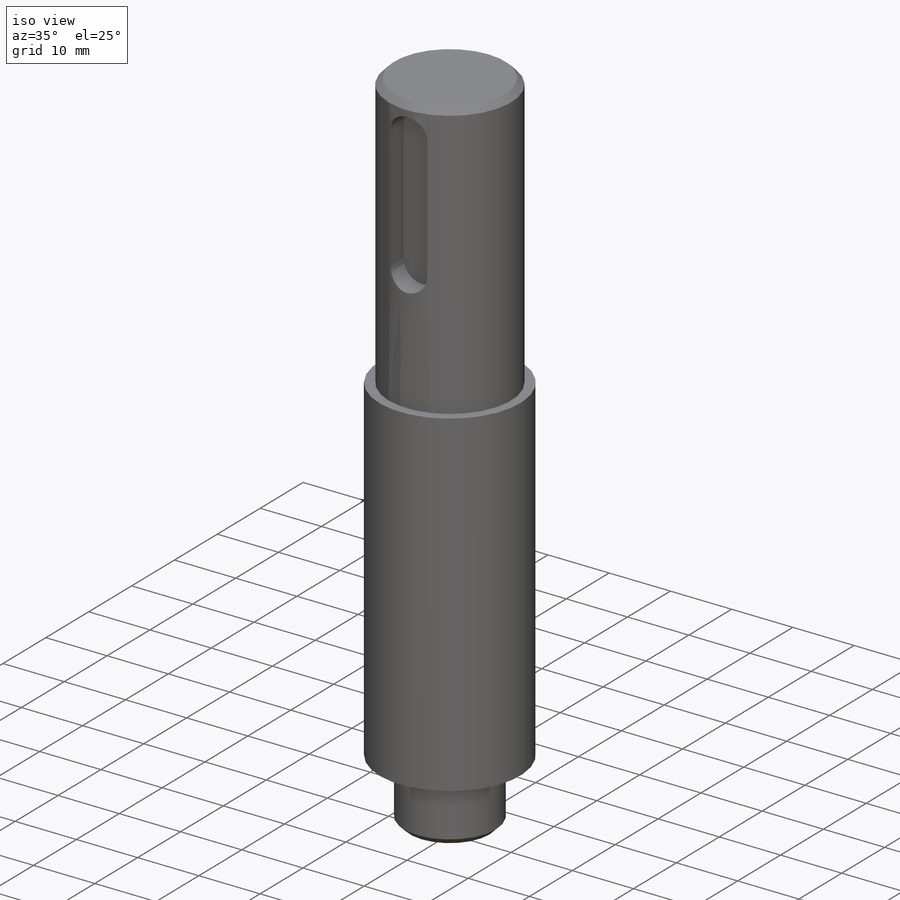
[diagram: iso view]
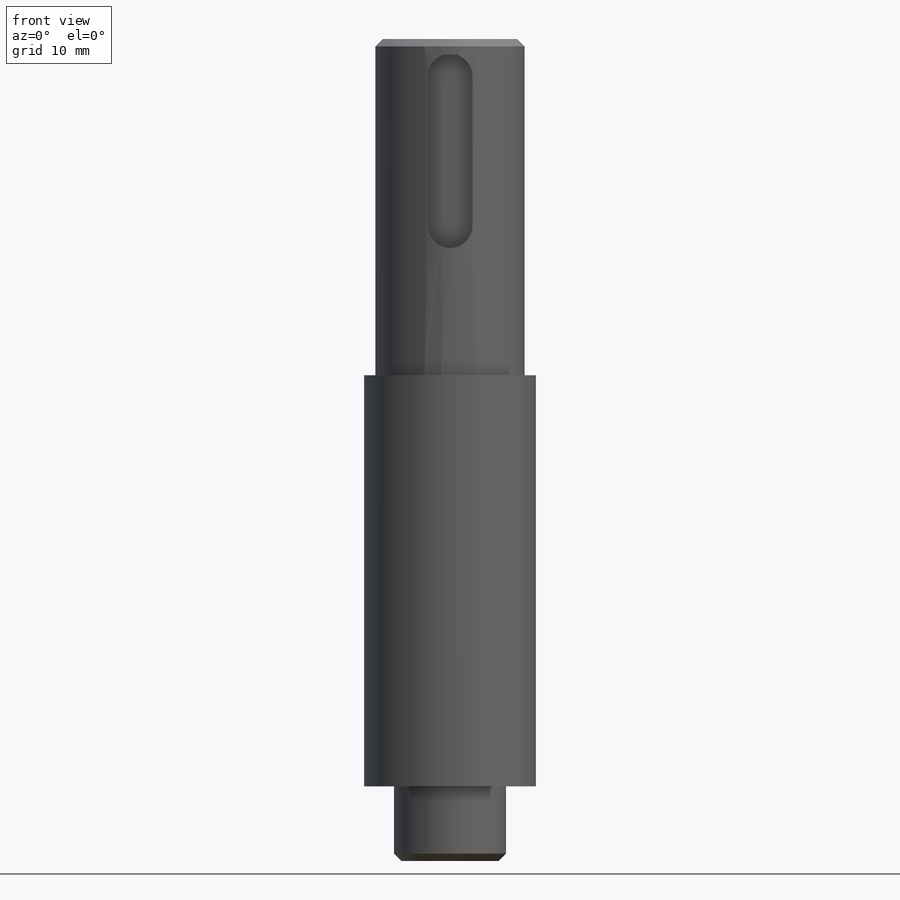
[diagram: front view]
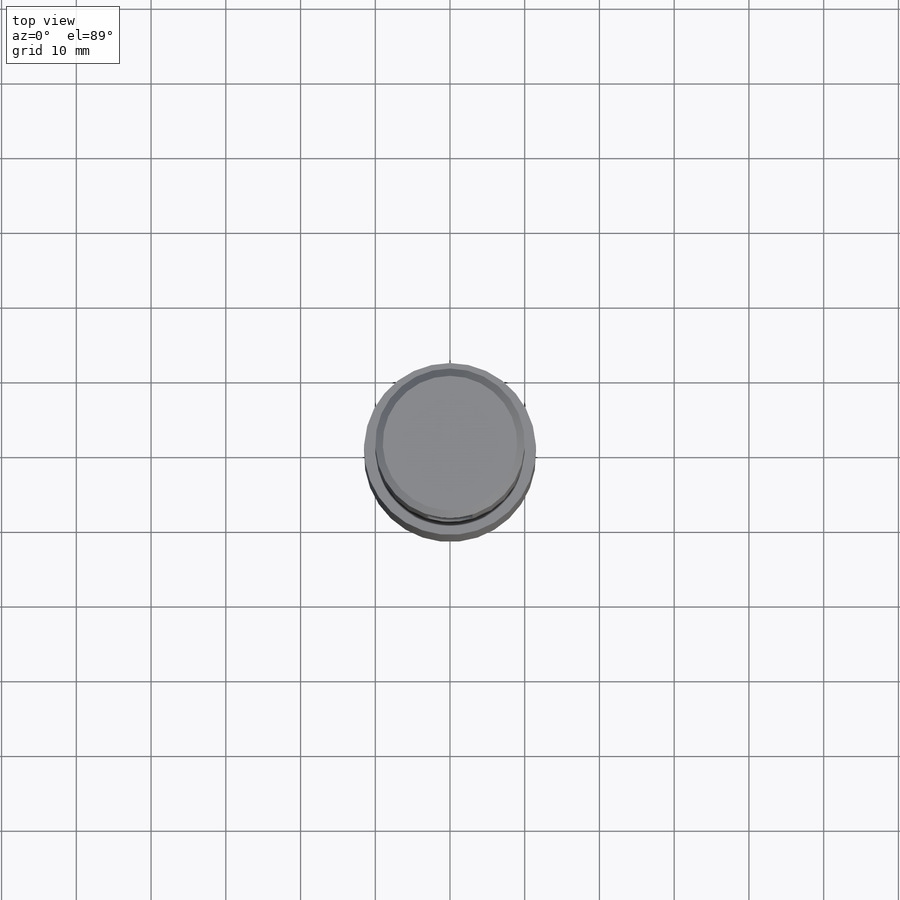
[diagram: top view]
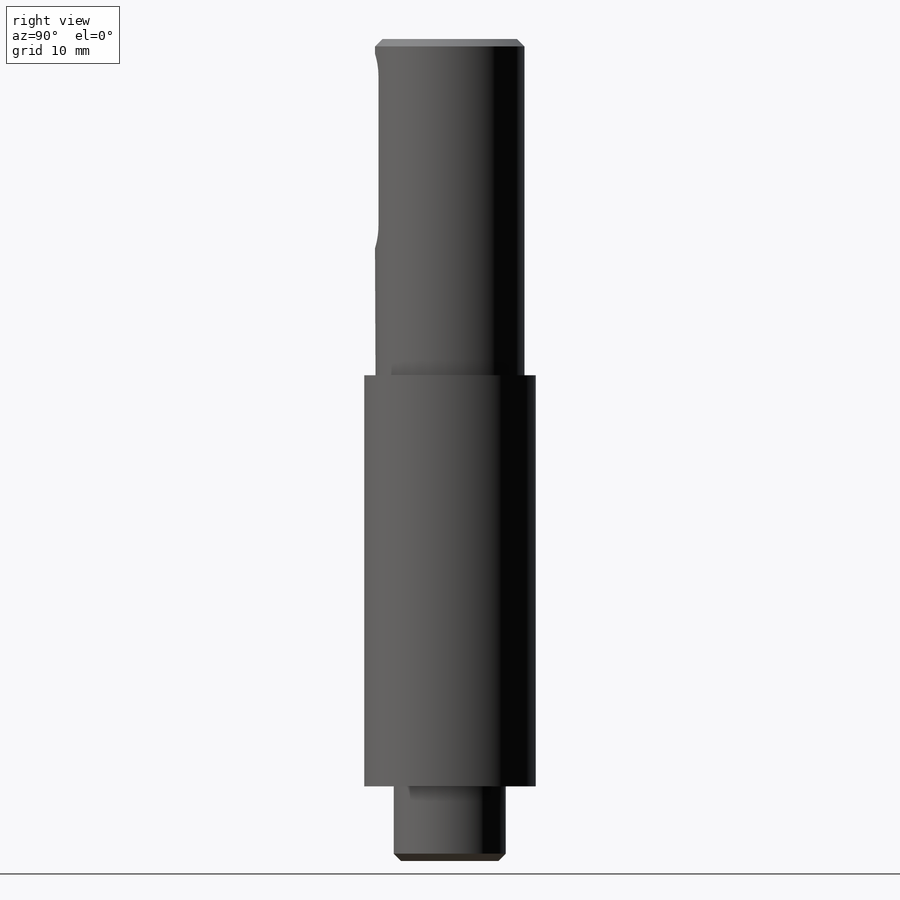
[diagram: right view]
SOLIDWORKS PART (.sldprt)
format: sldprt  version: not decoded by parser v0  size: 174,592 bytes
history: native  units: mm
features: plane x4, sketch x2, chamfer x2, material x1, revolve x1, cut_extrude x1 (+9 scaffold rows collapsed)
feature tree (20):
  scaffold x9  (default folders/planes/origin — collapsed)
  material  "材质 <未指定>"
  plane  "前视基准面"
  plane  "上视基准面"
  plane  "右视基准面"
  sketch  "草图1"  dims[c1.D1=10.0mm c1.D2=7.5mm c1.D3=~71.236041mm c1.D4=10.0mm c2.D3=110.0mm c2.D5=11.5mm c2.D6=65.0mm]
  revolve  "旋转1"  Angle=360deg
  chamfer  "倒角1"  Distance=1mm Angle=45deg
  plane  "基准面1"  Offset=6.5mm
  sketch  "草图2"  dims[D1=15.0mm D2=20.0mm D3=5.0mm]
  cut_extrude  "切除-拉伸1"  [1 undecoded]
  chamfer  "倒角2"  Distance=1mm Angle=45deg
decode coverage: 5 of 6 modeling features carry decoded parameters
note: ~ marks probable driven/reference dimensions
note: 1 parameter value undecoded
note: suppression state not decoded; provenance and decode notes live in map.json
